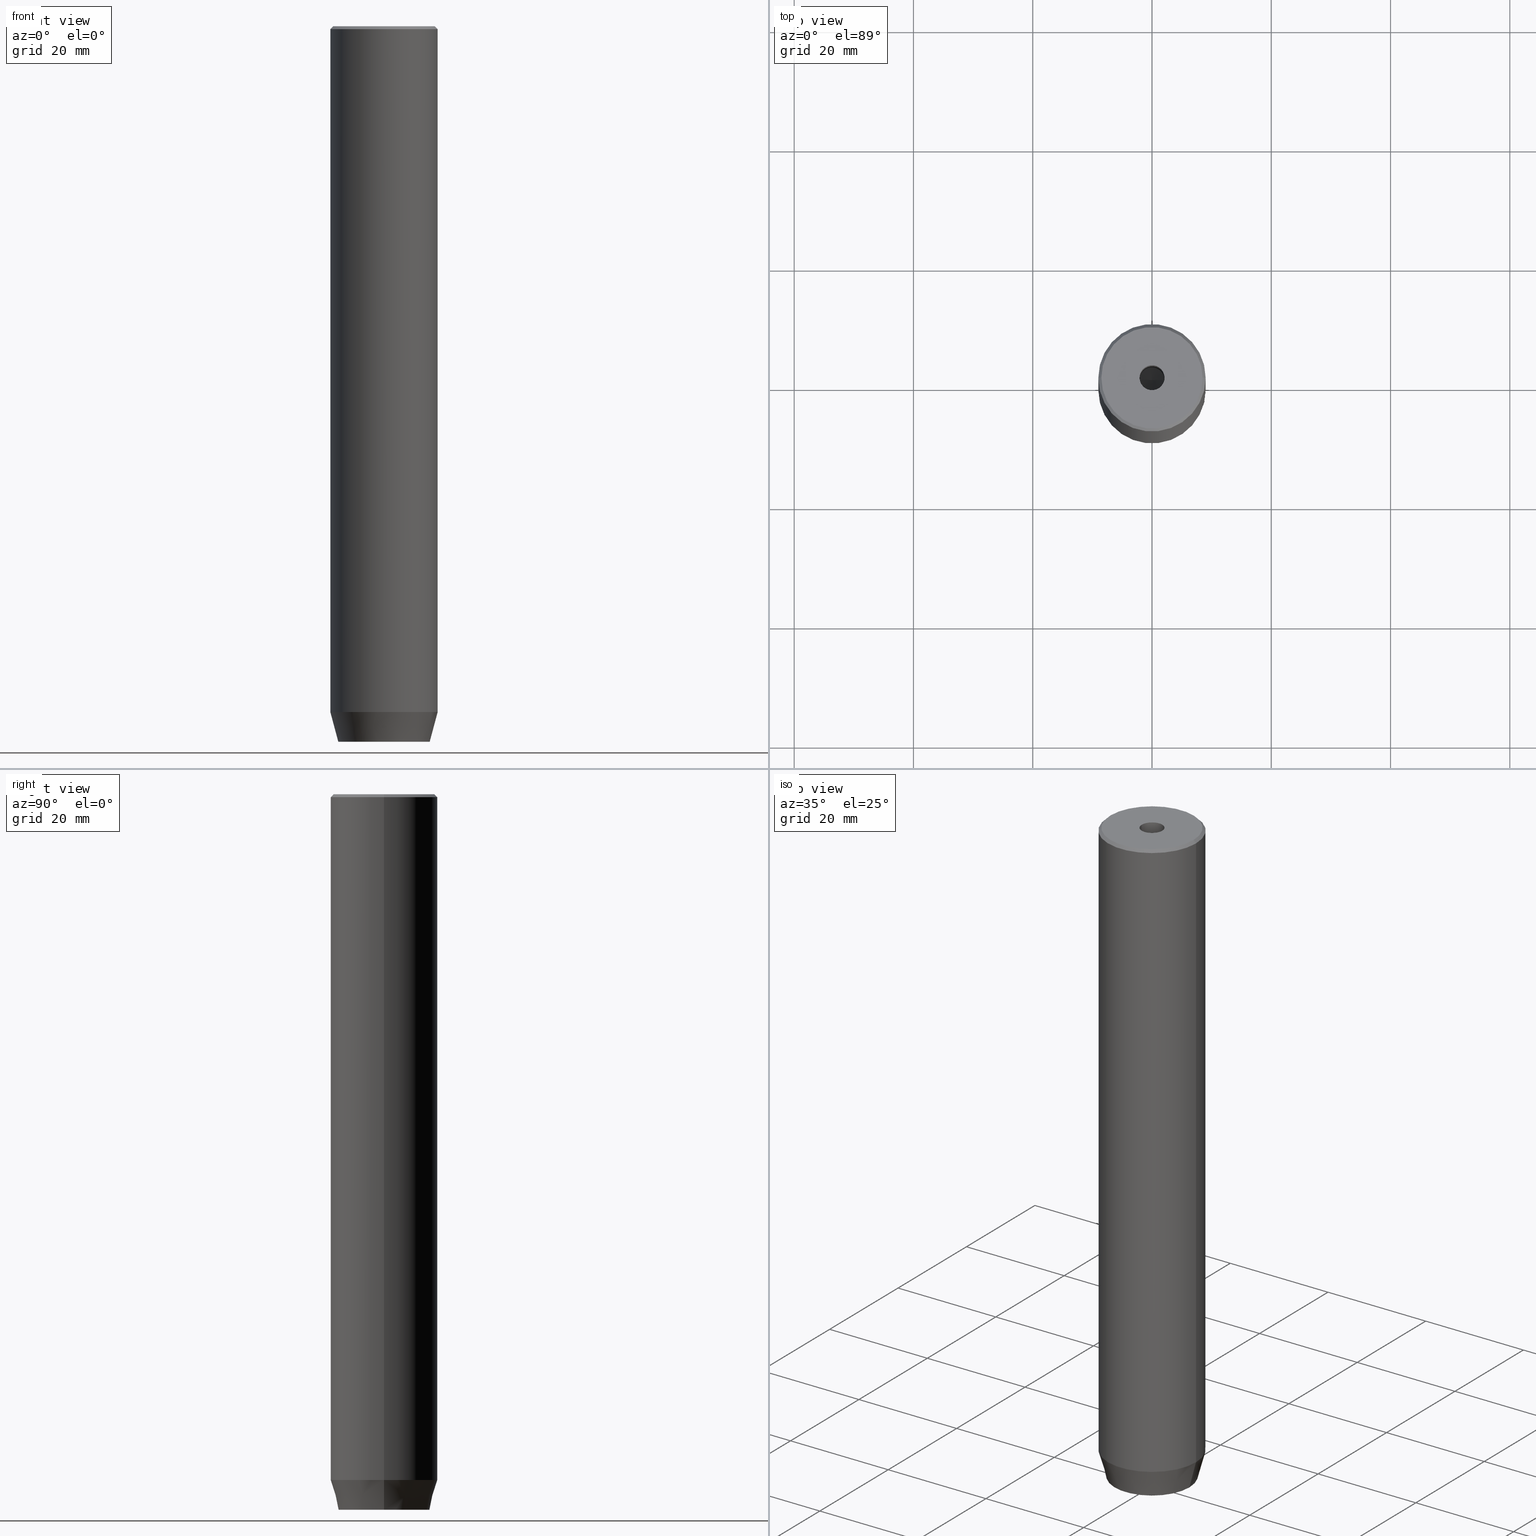
[diagram: canonical four-view strip — front | top / right | iso, engineering-drawing reading convention]
A machine part, canonical four-view strip (front | top / right | iso — engineering-drawing reading convention). The complete STEP part file that produces these views, byte-faithful:
ISO-10303-21;
HEADER;
FILE_DESCRIPTION (( 'STEP AP203' ),
    '1' );
FILE_NAME ('5eee.STEP',
    '2024-01-02T20:36:40',
    ( '' ),
    ( '' ),
    'SwSTEP 2.0',
    'SolidWorks 2019',
    '' );
FILE_SCHEMA (( 'CONFIG_CONTROL_DESIGN' ));
ENDSEC;

DATA;
#1 = LINE ( 'NONE', #51, #312 ) ;
#2 = EDGE_CURVE ( 'NONE', #159, #143, #544, .T. ) ;
#3 = DIRECTION ( 'NONE',  ( -2.503857664561932376E-16, 1.000000000000000000, 0.000000000000000000 ) ) ;
#4 = DIRECTION ( 'NONE',  ( -0.000000000000000000, -0.000000000000000000, -1.000000000000000000 ) ) ;
#5 = AXIS2_PLACEMENT_3D ( 'NONE', #539, #154, #472 ) ;
#6 = CIRCLE ( 'NONE', #32, 9.000000000000000000 ) ;
#7 = DIRECTION ( 'NONE',  ( -0.000000000000000000, -0.000000000000000000, -1.000000000000000000 ) ) ;
#8 = DIRECTION ( 'NONE',  ( 0.000000000000000000, -1.000000000000000000, 0.000000000000000000 ) ) ;
#9 = CALENDAR_DATE ( 2024, 2, 1 ) ;
#10 = DIRECTION ( 'NONE',  ( 1.000000000000000000, 0.000000000000000000, 0.000000000000000000 ) ) ;
#11 = ADVANCED_FACE ( 'NONE', ( #277 ), #23, .T. ) ;
#12 = DATE_TIME_ROLE ( 'creation_date' ) ;
#13 = CARTESIAN_POINT ( 'NONE',  ( 9.000000000000000000, 0.000000000000000000, -0.4999999999999952260 ) ) ;
#14 = ORIENTED_EDGE ( 'NONE', *, *, #240, .F. ) ;
#15 = CARTESIAN_POINT ( 'NONE',  ( 3.000000000000000000, -1.732050807568876527, -117.2000000000000028 ) ) ;
#16 = ORIENTED_EDGE ( 'NONE', *, *, #28, .T. ) ;
#17 = APPROVAL_STATUS ( 'not_yet_approved' ) ;
#18 = DIRECTION ( 'NONE',  ( -0.000000000000000000, -0.000000000000000000, 1.000000000000000000 ) ) ;
#19 = ORIENTED_EDGE ( 'NONE', *, *, #535, .F. ) ;
#20 = EDGE_CURVE ( 'NONE', #493, #152, #571, .T. ) ;
#21 = LINE ( 'NONE', #558, #375 ) ;
#22 = ORIENTED_EDGE ( 'NONE', *, *, #278, .T. ) ;
#23 = CONICAL_SURFACE ( 'NONE', #222, 8.499999999999992895, 0.7853981633974587151 ) ;
#24 = LINE ( 'NONE', #204, #80 ) ;
#25 = ORIENTED_EDGE ( 'NONE', *, *, #108, .T. ) ;
#26 = DIRECTION ( 'NONE',  ( 2.503857664561933362E-16, -1.000000000000000000, 0.000000000000000000 ) ) ;
#27 = ORIENTED_EDGE ( 'NONE', *, *, #510, .T. ) ;
#28 = EDGE_CURVE ( 'NONE', #110, #526, #46, .T. ) ;
#29 = DIRECTION ( 'NONE',  ( -0.000000000000000000, -0.000000000000000000, 1.000000000000000000 ) ) ;
#30 = EDGE_LOOP ( 'NONE', ( #22, #331, #310, #220 ) ) ;
#31 = CARTESIAN_POINT ( 'NONE',  ( -2.168404344971008868E-16, -3.464101615137754830, -117.2000000000000028 ) ) ;
#32 = AXIS2_PLACEMENT_3D ( 'NONE', #525, #264, #395 ) ;
#33 = ORIENTED_EDGE ( 'NONE', *, *, #148, .F. ) ;
#34 = EDGE_CURVE ( 'NONE', #73, #526, #582, .T. ) ;
#35 = CARTESIAN_POINT ( 'NONE',  ( 0.000000000000000000, 0.000000000000000000, -114.9999999999999858 ) ) ;
#36 = EDGE_LOOP ( 'NONE', ( #19, #33, #531, #508 ) ) ;
#37 = CYLINDRICAL_SURFACE ( 'NONE', #483, 9.000000000000000000 ) ;
#38 = ORIENTED_EDGE ( 'NONE', *, *, #323, .T. ) ;
#39 = DIRECTION ( 'NONE',  ( 0.5000000000000001110, -0.8660254037844385966, 0.000000000000000000 ) ) ;
#40 = AXIS2_PLACEMENT_3D ( 'NONE', #140, #500, #90 ) ;
#41 = DIRECTION ( 'NONE',  ( -0.000000000000000000, -0.000000000000000000, 1.000000000000000000 ) ) ;
#42 = AXIS2_PLACEMENT_3D ( 'NONE', #378, #335, #101 ) ;
#43 = DIRECTION ( 'NONE',  ( -0.000000000000000000, -0.000000000000000000, 1.000000000000000000 ) ) ;
#44 = CARTESIAN_POINT ( 'NONE',  ( -3.000000000000000888, 1.732050807568876527, -120.0000000000000000 ) ) ;
#45 = EDGE_CURVE ( 'NONE', #270, #75, #459, .T. ) ;
#46 = LINE ( 'NONE', #453, #182 ) ;
#47 = DIRECTION ( 'NONE',  ( 1.000000000000000000, 0.000000000000000000, 0.000000000000000000 ) ) ;
#48 = CARTESIAN_POINT ( 'NONE',  ( -1.084202172485504434E-16, 3.464101615137754830, -117.2000000000000028 ) ) ;
#49 = CONICAL_SURFACE ( 'NONE', #70, 9.000000000000000000, 0.2617993877991502405 ) ;
#50 = EDGE_CURVE ( 'NONE', #512, #523, #325, .T. ) ;
#51 = CARTESIAN_POINT ( 'NONE',  ( 3.000000000000000000, 1.732050807568876527, -117.2000000000000028 ) ) ;
#52 = APPROVAL_ROLE ( '' ) ;
#53 = DIRECTION ( 'NONE',  ( 0.000000000000000000, -1.000000000000000000, 0.000000000000000000 ) ) ;
#54 = APPROVAL ( #187, 'NEUR�EN�' ) ;
#55 = ORIENTED_EDGE ( 'NONE', *, *, #34, .T. ) ;
#56 = PERSON_AND_ORGANIZATION ( #115, #587 ) ;
#57 = FACE_OUTER_BOUND ( 'NONE', #393, .T. ) ;
#58 = ORIENTED_EDGE ( 'NONE', *, *, #88, .F. ) ;
#59 = VECTOR ( 'NONE', #360, 999.9999999999998863 ) ;
#60 = APPROVAL_STATUS ( 'not_yet_approved' ) ;
#61 = CARTESIAN_POINT ( 'NONE',  ( 3.000000000000000000, 1.732050807568876527, -120.0000000000000000 ) ) ;
#62 = EDGE_CURVE ( 'NONE', #526, #162, #135, .T. ) ;
#63 = AXIS2_PLACEMENT_3D ( 'NONE', #543, #39, #134 ) ;
#64 = APPROVAL_PERSON_ORGANIZATION ( #284, #72, #52 ) ;
#65 = APPROVAL_ROLE ( '' ) ;
#66 = CARTESIAN_POINT ( 'NONE',  ( 0.000000000000000000, 0.000000000000000000, -1.990051048614449116E-16 ) ) ;
#67 = CARTESIAN_POINT ( 'NONE',  ( 0.000000000000000000, 0.000000000000000000, -117.2000000000000028 ) ) ;
#68 = ORIENTED_EDGE ( 'NONE', *, *, #431, .F. ) ;
#69 = AXIS2_PLACEMENT_3D ( 'NONE', #146, #376, #338 ) ;
#70 = AXIS2_PLACEMENT_3D ( 'NONE', #35, #29, #303 ) ;
#71 = DIRECTION ( 'NONE',  ( -2.503857664561932376E-16, 1.000000000000000000, 0.000000000000000000 ) ) ;
#72 = APPROVAL ( #17, 'NEUR�EN�' ) ;
#73 = VERTEX_POINT ( 'NONE', #44 ) ;
#74 = LINE ( 'NONE', #386, #410 ) ;
#75 = VERTEX_POINT ( 'NONE', #92 ) ;
#76 = CARTESIAN_POINT ( 'NONE',  ( 0.000000000000000000, 0.000000000000000000, 0.000000000000000000 ) ) ;
#77 = EDGE_LOOP ( 'NONE', ( #533, #349, #473, #14 ) ) ;
#78 = MANIFOLD_SOLID_BREP ( 'Vrt�k z�vitn�ku pro M5 z�vit1', #479 ) ;
#79 = DIRECTION ( 'NONE',  ( -1.000000000000000000, -2.503857664561933362E-16, 0.000000000000000000 ) ) ;
#80 = VECTOR ( 'NONE', #434, 1000.000000000000000 ) ;
#81 = ORIENTED_EDGE ( 'NONE', *, *, #442, .T. ) ;
#82 = CC_DESIGN_PERSON_AND_ORGANIZATION_ASSIGNMENT ( #56, #460, ( #227 ) ) ;
#83 = CARTESIAN_POINT ( 'NONE',  ( -2.099999999999997424, 2.571758278209438506E-16, 0.000000000000000000 ) ) ;
#84 = ORIENTED_EDGE ( 'NONE', *, *, #404, .T. ) ;
#85 = CARTESIAN_POINT ( 'NONE',  ( 0.000000000000000000, 0.000000000000000000, -20.00000000000000000 ) ) ;
#86 =( LENGTH_UNIT ( ) NAMED_UNIT ( * ) SI_UNIT ( .MILLI., .METRE. ) );
#87 = CARTESIAN_POINT ( 'NONE',  ( 0.000000000000000000, 0.000000000000000000, -120.0000000000000000 ) ) ;
#88 = EDGE_CURVE ( 'NONE', #75, #484, #505, .T. ) ;
#89 =( NAMED_UNIT ( * ) PLANE_ANGLE_UNIT ( ) SI_UNIT ( $, .RADIAN. ) );
#90 = DIRECTION ( 'NONE',  ( 1.000000000000000000, 0.000000000000000000, 0.000000000000000000 ) ) ;
#91 = CARTESIAN_POINT ( 'NONE',  ( -1.499999999999999556, 2.598076211353316012, -117.2000000000000028 ) ) ;
#92 = CARTESIAN_POINT ( 'NONE',  ( -7.660254037844380193, 1.020146339021394272E-15, -120.0000000000000000 ) ) ;
#93 = EDGE_CURVE ( 'NONE', #259, #73, #127, .T. ) ;
#94 = DIRECTION ( 'NONE',  ( -0.2588190451025214611, 3.169619151431774186E-17, 0.9659258262890679791 ) ) ;
#95 = DIRECTION ( 'NONE',  ( 0.000000000000000000, 0.000000000000000000, 1.000000000000000000 ) ) ;
#96 = DIRECTION ( 'NONE',  ( 1.000000000000000000, 0.000000000000000000, 0.000000000000000000 ) ) ;
#97 = ORIENTED_EDGE ( 'NONE', *, *, #580, .T. ) ;
#98 = APPROVAL_DATE_TIME ( #509, #54 ) ;
#99 = CARTESIAN_POINT ( 'NONE',  ( 9.000000000000000000, 0.000000000000000000, -114.9999999999999858 ) ) ;
#100 = EDGE_LOOP ( 'NONE', ( #120, #336 ) ) ;
#101 = DIRECTION ( 'NONE',  ( 1.000000000000000000, 0.000000000000000000, 0.000000000000000000 ) ) ;
#102 = EDGE_CURVE ( 'NONE', #446, #162, #1, .T. ) ;
#103 = PERSON_AND_ORGANIZATION_ROLE ( 'design_supplier' ) ;
#104 = CARTESIAN_POINT ( 'NONE',  ( 7.660254037844380193, 0.000000000000000000, -120.0000000000000000 ) ) ;
#105 = VERTEX_POINT ( 'NONE', #280 ) ;
#106 = LINE ( 'NONE', #424, #329 ) ;
#107 = ORIENTED_EDGE ( 'NONE', *, *, #519, .T. ) ;
#108 = EDGE_CURVE ( 'NONE', #446, #288, #224, .T. ) ;
#109 = DIRECTION ( 'NONE',  ( 1.000000000000000000, 0.000000000000000000, 0.000000000000000000 ) ) ;
#110 = VERTEX_POINT ( 'NONE', #48 ) ;
#111 = AXIS2_PLACEMENT_3D ( 'NONE', #416, #18, #10 ) ;
#112 = VECTOR ( 'NONE', #122, 1000.000000000000000 ) ;
#113 = LINE ( 'NONE', #161, #491 ) ;
#114 = EDGE_LOOP ( 'NONE', ( #343, #579, #97, #367 ) ) ;
#115 = PERSON ( 'NEUR�EN�', 'NEUR�EN�', 'NEUR�EN�', ('NEUR�EN�'), ('NEUR�EN�'), ('NEUR�EN�') ) ;
#116 = LOCAL_TIME ( 21, 36, 40.00000000000000000, #423 ) ;
#117 = DIRECTION ( 'NONE',  ( -0.4999999999999999445, 0.8660254037844387076, 0.000000000000000000 ) ) ;
#118 = ORIENTED_EDGE ( 'NONE', *, *, #202, .F. ) ;
#119 = DIRECTION ( 'NONE',  ( -1.000000000000000000, 0.000000000000000000, -0.000000000000000000 ) ) ;
#120 = ORIENTED_EDGE ( 'NONE', *, *, #285, .F. ) ;
#121 = EDGE_CURVE ( 'NONE', #143, #296, #448, .T. ) ;
#122 = DIRECTION ( 'NONE',  ( -0.000000000000000000, -0.000000000000000000, 1.000000000000000000 ) ) ;
#123 = VECTOR ( 'NONE', #345, 1000.000000000000000 ) ;
#124 = EDGE_LOOP ( 'NONE', ( #565, #226 ) ) ;
#125 = DIRECTION ( 'NONE',  ( -1.000000000000000000, 0.000000000000000000, 0.000000000000000000 ) ) ;
#126 = AXIS2_PLACEMENT_3D ( 'NONE', #581, #536, #125 ) ;
#127 = LINE ( 'NONE', #461, #350 ) ;
#128 = ADVANCED_FACE ( 'NONE', ( #272 ), #233, .F. ) ;
#129 = CARTESIAN_POINT ( 'NONE',  ( 0.000000000000000000, 0.000000000000000000, 0.000000000000000000 ) ) ;
#130 = ORIENTED_EDGE ( 'NONE', *, *, #50, .T. ) ;
#131 = CARTESIAN_POINT ( 'NONE',  ( 3.000000000000000000, -1.732050807568876527, -117.2000000000000028 ) ) ;
#132 = ORIENTED_EDGE ( 'NONE', *, *, #28, .F. ) ;
#133 = VECTOR ( 'NONE', #53, 1000.000000000000000 ) ;
#134 = DIRECTION ( 'NONE',  ( 0.8660254037844385966, 0.5000000000000001110, 0.000000000000000000 ) ) ;
#135 = LINE ( 'NONE', #502, #394 ) ;
#136 = VECTOR ( 'NONE', #538, 1000.000000000000000 ) ;
#137 = LOCAL_TIME ( 21, 36, 40.00000000000000000, #380 ) ;
#138 = ADVANCED_FACE ( 'NONE', ( #318 ), #385, .F. ) ;
#139 = DIRECTION ( 'NONE',  ( 1.000000000000000000, 0.000000000000000000, 0.000000000000000000 ) ) ;
#140 = CARTESIAN_POINT ( 'NONE',  ( 0.000000000000000000, 0.000000000000000000, 0.000000000000000000 ) ) ;
#141 = DATE_AND_TIME ( #417, #260 ) ;
#142 = DIRECTION ( 'NONE',  ( -0.000000000000000000, -0.000000000000000000, 1.000000000000000000 ) ) ;
#143 = VERTEX_POINT ( 'NONE', #176 ) ;
#144 = CONICAL_SURFACE ( 'NONE', #111, 9.000000000000000000, 0.2617993877991502405 ) ;
#145 = PERSON_AND_ORGANIZATION_ROLE ( 'design_owner' ) ;
#146 = CARTESIAN_POINT ( 'NONE',  ( 1.500000000000000222, 2.598076211353315568, -117.2000000000000028 ) ) ;
#147 = CC_DESIGN_SECURITY_CLASSIFICATION ( #454, ( #227 ) ) ;
#148 = EDGE_CURVE ( 'NONE', #143, #567, #171, .T. ) ;
#149 = CARTESIAN_POINT ( 'NONE',  ( 0.000000000000000000, 0.000000000000000000, -114.9999999999999858 ) ) ;
#150 = ORIENTED_EDGE ( 'NONE', *, *, #412, .F. ) ;
#151 = DIRECTION ( 'NONE',  ( -0.000000000000000000, -0.000000000000000000, 1.000000000000000000 ) ) ;
#152 = VERTEX_POINT ( 'NONE', #236 ) ;
#153 = CIRCLE ( 'NONE', #234, 8.499999999999992895 ) ;
#154 = DIRECTION ( 'NONE',  ( -0.000000000000000000, -0.000000000000000000, 1.000000000000000000 ) ) ;
#155 = EDGE_LOOP ( 'NONE', ( #559, #399, #249, #150 ) ) ;
#156 = EDGE_CURVE ( 'NONE', #105, #173, #339, .T. ) ;
#157 = VECTOR ( 'NONE', #3, 1000.000000000000000 ) ;
#158 = CARTESIAN_POINT ( 'NONE',  ( -2.099999999999996092, 2.571758278209436534E-16, -20.00000000000000000 ) ) ;
#159 = VERTEX_POINT ( 'NONE', #564 ) ;
#160 = CC_DESIGN_PERSON_AND_ORGANIZATION_ASSIGNMENT ( #337, #103, ( #227 ) ) ;
#161 = CARTESIAN_POINT ( 'NONE',  ( -3.000000000000000444, -7.511572993685800087E-16, -120.0000000000000000 ) ) ;
#162 = VERTEX_POINT ( 'NONE', #61 ) ;
#163 = AXIS2_PLACEMENT_3D ( 'NONE', #210, #208, #306 ) ;
#164 = LINE ( 'NONE', #430, #245 ) ;
#165 = ORIENTED_EDGE ( 'NONE', *, *, #297, .T. ) ;
#166 = CARTESIAN_POINT ( 'NONE',  ( -3.000000000000000444, -7.511572993685800087E-16, -117.2000000000000028 ) ) ;
#167 = EDGE_CURVE ( 'NONE', #493, #173, #106, .T. ) ;
#168 = ORIENTED_EDGE ( 'NONE', *, *, #148, .T. ) ;
#169 = PLANE ( 'NONE',  #433 ) ;
#170 = ORIENTED_EDGE ( 'NONE', *, *, #311, .T. ) ;
#171 = CIRCLE ( 'NONE', #5, 2.099999999999996092 ) ;
#172 = CYLINDRICAL_SURFACE ( 'NONE', #576, 9.000000000000000000 ) ;
#173 = VERTEX_POINT ( 'NONE', #13 ) ;
#174 = PRODUCT_DEFINITION ( 'NEZN�M�', '', #227, #370 ) ;
#175 = FACE_OUTER_BOUND ( 'NONE', #391, .T. ) ;
#176 = CARTESIAN_POINT ( 'NONE',  ( 2.099999999999996092, 0.000000000000000000, -20.00000000000000000 ) ) ;
#177 = LOCAL_TIME ( 21, 36, 40.00000000000000000, #560 ) ;
#178 =( NAMED_UNIT ( * ) SI_UNIT ( $, .STERADIAN. ) SOLID_ANGLE_UNIT ( ) );
#179 = DIRECTION ( 'NONE',  ( -0.000000000000000000, -0.000000000000000000, 1.000000000000000000 ) ) ;
#180 = APPLICATION_CONTEXT ( 'configuration controlled 3d designs of mechanical parts and assemblies' ) ;
#181 = CARTESIAN_POINT ( 'NONE',  ( 0.000000000000000000, 0.000000000000000000, 0.000000000000000000 ) ) ;
#182 = VECTOR ( 'NONE', #4, 1000.000000000000000 ) ;
#183 = DIRECTION ( 'NONE',  ( 0.8571673007021111124, 0.000000000000000000, 0.5150380749100562650 ) ) ;
#184 = AXIS2_PLACEMENT_3D ( 'NONE', #67, #530, #119 ) ;
#185 = CARTESIAN_POINT ( 'NONE',  ( -2.168404344971008868E-16, -3.464101615137754830, -120.0000000000000000 ) ) ;
#186 = CARTESIAN_POINT ( 'NONE',  ( -1.499999999999999556, 2.598076211353316012, -120.0000000000000000 ) ) ;
#187 = APPROVAL_STATUS ( 'not_yet_approved' ) ;
#188 = FACE_OUTER_BOUND ( 'NONE', #241, .T. ) ;
#189 = PERSON_AND_ORGANIZATION ( #115, #587 ) ;
#190 = DIRECTION ( 'NONE',  ( -0.000000000000000000, -0.000000000000000000, 1.000000000000000000 ) ) ;
#191 = ORIENTED_EDGE ( 'NONE', *, *, #193, .T. ) ;
#192 = AXIS2_PLACEMENT_3D ( 'NONE', #76, #443, #348 ) ;
#193 = EDGE_CURVE ( 'NONE', #469, #523, #21, .T. ) ;
#194 = CALENDAR_DATE ( 2024, 2, 1 ) ;
#195 = CARTESIAN_POINT ( 'NONE',  ( 2.099999999999998757, 0.000000000000000000, -1.990051048614449116E-16 ) ) ;
#196 = ORIENTED_EDGE ( 'NONE', *, *, #442, .F. ) ;
#197 = PRODUCT_RELATED_PRODUCT_CATEGORY ( 'detail', '', ( #573 ) ) ;
#198 = FACE_OUTER_BOUND ( 'NONE', #215, .T. ) ;
#199 = VERTEX_POINT ( 'NONE', #517 ) ;
#200 = PERSON_AND_ORGANIZATION ( #115, #587 ) ;
#201 = FACE_OUTER_BOUND ( 'NONE', #124, .T. ) ;
#202 = EDGE_CURVE ( 'NONE', #110, #446, #476, .T. ) ;
#203 = ORIENTED_EDGE ( 'NONE', *, *, #381, .F. ) ;
#204 = CARTESIAN_POINT ( 'NONE',  ( -8.499999999999992895, 0.000000000000000000, 0.000000000000000000 ) ) ;
#205 = CC_DESIGN_PERSON_AND_ORGANIZATION_ASSIGNMENT ( #200, #420, ( #454 ) ) ;
#206 = VERTEX_POINT ( 'NONE', #298 ) ;
#207 = CC_DESIGN_APPROVAL ( #72, ( #174 ) ) ;
#208 = DIRECTION ( 'NONE',  ( -0.000000000000000000, -0.000000000000000000, 1.000000000000000000 ) ) ;
#209 = ORIENTED_EDGE ( 'NONE', *, *, #240, .T. ) ;
#210 = CARTESIAN_POINT ( 'NONE',  ( 0.000000000000000000, 0.000000000000000000, -120.0000000000000000 ) ) ;
#211 = ORIENTED_EDGE ( 'NONE', *, *, #93, .T. ) ;
#212 = ADVANCED_FACE ( 'NONE', ( #520 ), #144, .T. ) ;
#213 = VECTOR ( 'NONE', #438, 1000.000000000000000 ) ;
#214 = FACE_OUTER_BOUND ( 'NONE', #114, .T. ) ;
#215 = EDGE_LOOP ( 'NONE', ( #521, #352, #118, #16 ) ) ;
#216 = AXIS2_PLACEMENT_3D ( 'NONE', #129, #499, #139 ) ;
#217 = LINE ( 'NONE', #356, #112 ) ;
#218 = EDGE_LOOP ( 'NONE', ( #81, #308 ) ) ;
#219 = LINE ( 'NONE', #83, #316 ) ;
#220 = ORIENTED_EDGE ( 'NONE', *, *, #102, .T. ) ;
#221 = ADVANCED_FACE ( 'NONE', ( #198 ), #384, .F. ) ;
#222 = AXIS2_PLACEMENT_3D ( 'NONE', #497, #229, #455 ) ;
#223 = CARTESIAN_POINT ( 'NONE',  ( -9.000000000000000000, 1.102182119232617714E-15, -114.9999999999999858 ) ) ;
#224 = LINE ( 'NONE', #403, #358 ) ;
#225 = PLANE ( 'NONE',  #216 ) ;
#226 = ORIENTED_EDGE ( 'NONE', *, *, #389, .F. ) ;
#227 = PRODUCT_DEFINITION_FORMATION_WITH_SPECIFIED_SOURCE ( 'LIBOVOLN�', '', #573, .NOT_KNOWN. ) ;
#228 = LINE ( 'NONE', #91, #313 ) ;
#229 = DIRECTION ( 'NONE',  ( 0.000000000000000000, 0.000000000000000000, -1.000000000000000000 ) ) ;
#230 = ADVANCED_FACE ( 'NONE', ( #239, #201 ), #333, .T. ) ;
#231 = CARTESIAN_POINT ( 'NONE',  ( -3.000000000000000444, -7.511572993685800087E-16, -117.2000000000000028 ) ) ;
#232 = AXIS2_PLACEMENT_3D ( 'NONE', #87, #327, #365 ) ;
#233 = PLANE ( 'NONE',  #470 ) ;
#234 = AXIS2_PLACEMENT_3D ( 'NONE', #261, #522, #109 ) ;
#235 = PERSON_AND_ORGANIZATION_ROLE ( 'creator' ) ;
#236 = CARTESIAN_POINT ( 'NONE',  ( -8.499999999999992895, 0.000000000000000000, 0.000000000000000000 ) ) ;
#237 = VECTOR ( 'NONE', #324, 1000.000000000000000 ) ;
#238 = APPROVAL_DATE_TIME ( #250, #72 ) ;
#239 = FACE_BOUND ( 'NONE', #408, .T. ) ;
#240 = EDGE_CURVE ( 'NONE', #270, #465, #561, .T. ) ;
#241 = EDGE_LOOP ( 'NONE', ( #130, #439, #477, #170 ) ) ;
#242 = DATE_TIME_ROLE ( 'classification_date' ) ;
#243 = DIRECTION ( 'NONE',  ( -0.000000000000000000, -0.000000000000000000, -1.000000000000000000 ) ) ;
#244 = EDGE_LOOP ( 'NONE', ( #396, #262, #255, #27 ) ) ;
#245 = VECTOR ( 'NONE', #485, 1000.000000000000000 ) ;
#246 = CC_DESIGN_DATE_AND_TIME_ASSIGNMENT ( #504, #242, ( #454 ) ) ;
#247 = COORDINATED_UNIVERSAL_TIME_OFFSET ( 1, 0, .AHEAD. ) ;
#248 = DIRECTION ( 'NONE',  ( 0.8660254037844385966, -0.5000000000000001110, 0.000000000000000000 ) ) ;
#249 = ORIENTED_EDGE ( 'NONE', *, *, #156, .F. ) ;
#250 = DATE_AND_TIME ( #194, #437 ) ;
#251 = ADVANCED_FACE ( 'NONE', ( #188 ), #373, .F. ) ;
#252 = DIRECTION ( 'NONE',  ( 0.000000000000000000, 0.000000000000000000, -1.000000000000000000 ) ) ;
#253 = EDGE_LOOP ( 'NONE', ( #315, #196, #334, #577 ) ) ;
#254 = DIRECTION ( 'NONE',  ( -0.000000000000000000, -0.000000000000000000, 1.000000000000000000 ) ) ;
#255 = ORIENTED_EDGE ( 'NONE', *, *, #404, .F. ) ;
#256 = AXIS2_PLACEMENT_3D ( 'NONE', #85, #41, #586 ) ;
#257 = AXIS2_PLACEMENT_3D ( 'NONE', #149, #142, #330 ) ;
#258 = FACE_OUTER_BOUND ( 'NONE', #377, .T. ) ;
#259 = VERTEX_POINT ( 'NONE', #467 ) ;
#260 = LOCAL_TIME ( 21, 36, 40.00000000000000000, #281 ) ;
#261 = CARTESIAN_POINT ( 'NONE',  ( 0.000000000000000000, 0.000000000000000000, 0.000000000000000000 ) ) ;
#262 = ORIENTED_EDGE ( 'NONE', *, *, #311, .F. ) ;
#263 = EDGE_CURVE ( 'NONE', #465, #484, #506, .T. ) ;
#264 = DIRECTION ( 'NONE',  ( 0.000000000000000000, 0.000000000000000000, -1.000000000000000000 ) ) ;
#265 = ORIENTED_EDGE ( 'NONE', *, *, #156, .T. ) ;
#266 = FACE_OUTER_BOUND ( 'NONE', #301, .T. ) ;
#267 = ORIENTED_EDGE ( 'NONE', *, *, #2, .T. ) ;
#268 = ADVANCED_FACE ( 'NONE', ( #57 ), #534, .F. ) ;
#269 = LINE ( 'NONE', #231, #157 ) ;
#270 = VERTEX_POINT ( 'NONE', #104 ) ;
#271 = DIRECTION ( 'NONE',  ( -0.000000000000000000, -0.000000000000000000, 1.000000000000000000 ) ) ;
#272 = FACE_OUTER_BOUND ( 'NONE', #30, .T. ) ;
#273 = AXIS2_PLACEMENT_3D ( 'NONE', #464, #290, #295 ) ;
#274 = CARTESIAN_POINT ( 'NONE',  ( -3.000000000000000000, -1.732050807568877859, -120.0000000000000000 ) ) ;
#275 = ORIENTED_EDGE ( 'NONE', *, *, #422, .F. ) ;
#276 = DIRECTION ( 'NONE',  ( 1.000000000000000000, 0.000000000000000000, 0.000000000000000000 ) ) ;
#277 = FACE_OUTER_BOUND ( 'NONE', #155, .T. ) ;
#278 = EDGE_CURVE ( 'NONE', #162, #341, #421, .T. ) ;
#279 = CARTESIAN_POINT ( 'NONE',  ( 9.000000000000000000, 0.000000000000000000, -114.9999999999999858 ) ) ;
#280 = CARTESIAN_POINT ( 'NONE',  ( -9.000000000000000000, 1.102182119232617714E-15, -0.4999999999999952260 ) ) ;
#281 = COORDINATED_UNIVERSAL_TIME_OFFSET ( 1, 0, .AHEAD. ) ;
#282 = DIRECTION ( 'NONE',  ( 0.8660254037844385966, -0.5000000000000001110, 0.000000000000000000 ) ) ;
#283 = AXIS2_PLACEMENT_3D ( 'NONE', #488, #578, #575 ) ;
#284 = PERSON_AND_ORGANIZATION ( #115, #587 ) ;
#285 = EDGE_CURVE ( 'NONE', #296, #199, #471, .T. ) ;
#286 = DIRECTION ( 'NONE',  ( 0.000000000000000000, 0.000000000000000000, -1.000000000000000000 ) ) ;
#287 =( GEOMETRIC_REPRESENTATION_CONTEXT ( 3 ) GLOBAL_UNCERTAINTY_ASSIGNED_CONTEXT ( ( #289 ) ) GLOBAL_UNIT_ASSIGNED_CONTEXT ( ( #86, #89, #178 ) ) REPRESENTATION_CONTEXT ( 'NONE', 'WORKASPACE' ) );
#288 = VERTEX_POINT ( 'NONE', #15 ) ;
#289 = UNCERTAINTY_MEASURE_WITH_UNIT (LENGTH_MEASURE( 1.000000000000000082E-05 ), #86, 'distance_accuracy_value', 'NONE');
#290 = DIRECTION ( 'NONE',  ( -0.5000000000000001110, -0.8660254037844385966, 0.000000000000000000 ) ) ;
#291 = PERSON_AND_ORGANIZATION ( #115, #587 ) ;
#292 = FACE_OUTER_BOUND ( 'NONE', #346, .T. ) ;
#293 = ORIENTED_EDGE ( 'NONE', *, *, #456, .T. ) ;
#294 = AXIS2_PLACEMENT_3D ( 'NONE', #568, #117, #440 ) ;
#295 = DIRECTION ( 'NONE',  ( 0.8660254037844385966, -0.5000000000000001110, 0.000000000000000000 ) ) ;
#296 = VERTEX_POINT ( 'NONE', #195 ) ;
#297 = EDGE_CURVE ( 'NONE', #567, #143, #481, .T. ) ;
#298 = CARTESIAN_POINT ( 'NONE',  ( -2.168404344971008868E-16, -3.464101615137754830, -117.2000000000000028 ) ) ;
#299 = ORIENTED_EDGE ( 'NONE', *, *, #93, .F. ) ;
#300 = CARTESIAN_POINT ( 'NONE',  ( 3.000000000000000000, 1.732050807568876527, -117.2000000000000028 ) ) ;
#301 = EDGE_LOOP ( 'NONE', ( #38, #299, #480, #191 ) ) ;
#302 = AXIS2_PLACEMENT_3D ( 'NONE', #66, #190, #514 ) ;
#303 = DIRECTION ( 'NONE',  ( 1.000000000000000000, 0.000000000000000000, 0.000000000000000000 ) ) ;
#304 = ADVANCED_FACE ( 'NONE', ( #292 ), #482, .F. ) ;
#305 = ORIENTED_EDGE ( 'NONE', *, *, #323, .F. ) ;
#306 = DIRECTION ( 'NONE',  ( 1.000000000000000000, 0.000000000000000000, 0.000000000000000000 ) ) ;
#307 = APPROVAL ( #60, 'NEUR�EN�' ) ;
#308 = ORIENTED_EDGE ( 'NONE', *, *, #20, .T. ) ;
#309 = LINE ( 'NONE', #31, #213 ) ;
#310 = ORIENTED_EDGE ( 'NONE', *, *, #108, .F. ) ;
#311 = EDGE_CURVE ( 'NONE', #206, #512, #309, .T. ) ;
#312 = VECTOR ( 'NONE', #413, 1000.000000000000000 ) ;
#313 = VECTOR ( 'NONE', #366, 999.9999999999998863 ) ;
#314 = CARTESIAN_POINT ( 'NONE',  ( 0.000000000000000000, 0.000000000000000000, -114.9999999999999858 ) ) ;
#315 = ORIENTED_EDGE ( 'NONE', *, *, #167, .F. ) ;
#316 = VECTOR ( 'NONE', #319, 1000.000000000000000 ) ;
#317 = CARTESIAN_POINT ( 'NONE',  ( -2.099999999999996092, 2.571758278209436534E-16, -20.00000000000000000 ) ) ;
#318 = FACE_OUTER_BOUND ( 'NONE', #486, .T. ) ;
#319 = DIRECTION ( 'NONE',  ( -0.000000000000000000, -0.000000000000000000, 1.000000000000000000 ) ) ;
#320 = EDGE_LOOP ( 'NONE', ( #293, #357, #25, #84, #107, #569 ) ) ;
#321 = VECTOR ( 'NONE', #183, 1000.000000000000000 ) ;
#322 = CARTESIAN_POINT ( 'NONE',  ( 2.099999999999996092, 0.000000000000000000, -20.00000000000000000 ) ) ;
#323 = EDGE_CURVE ( 'NONE', #523, #73, #113, .T. ) ;
#324 = DIRECTION ( 'NONE',  ( -0.8660254037844385966, -0.5000000000000001110, 0.000000000000000000 ) ) ;
#325 = LINE ( 'NONE', #541, #432 ) ;
#326 = CALENDAR_DATE ( 2024, 2, 1 ) ;
#327 = DIRECTION ( 'NONE',  ( -0.000000000000000000, -0.000000000000000000, 1.000000000000000000 ) ) ;
#328 = ADVANCED_FACE ( 'NONE', ( #214 ), #390, .F. ) ;
#329 = VECTOR ( 'NONE', #418, 1000.000000000000000 ) ;
#330 = DIRECTION ( 'NONE',  ( 1.000000000000000000, 0.000000000000000000, 0.000000000000000000 ) ) ;
#331 = ORIENTED_EDGE ( 'NONE', *, *, #510, .F. ) ;
#332 = APPLICATION_PROTOCOL_DEFINITION ( 'international standard', 'config_control_design', 1994, #180 ) ;
#333 = PLANE ( 'NONE',  #450 ) ;
#334 = ORIENTED_EDGE ( 'NONE', *, *, #412, .T. ) ;
#335 = DIRECTION ( 'NONE',  ( -0.000000000000000000, -0.000000000000000000, 1.000000000000000000 ) ) ;
#336 = ORIENTED_EDGE ( 'NONE', *, *, #580, .F. ) ;
#337 = PERSON_AND_ORGANIZATION ( #115, #587 ) ;
#338 = DIRECTION ( 'NONE',  ( -0.8660254037844385966, 0.5000000000000001110, 0.000000000000000000 ) ) ;
#339 = CIRCLE ( 'NONE', #542, 9.000000000000000000 ) ;
#340 = ADVANCED_FACE ( 'NONE', ( #266 ), #169, .F. ) ;
#341 = VERTEX_POINT ( 'NONE', #397 ) ;
#342 = CARTESIAN_POINT ( 'NONE',  ( 1.500000000000000222, 2.598076211353315568, -117.2000000000000028 ) ) ;
#343 = ORIENTED_EDGE ( 'NONE', *, *, #297, .F. ) ;
#344 = CC_DESIGN_APPROVAL ( #54, ( #454 ) ) ;
#345 = DIRECTION ( 'NONE',  ( -0.8571673007021111124, 1.049727191138617217E-16, 0.5150380749100562650 ) ) ;
#346 = EDGE_LOOP ( 'NONE', ( #55, #132, #425, #211 ) ) ;
#347 = ADVANCED_FACE ( 'NONE', ( #572 ), #532, .F. ) ;
#348 = DIRECTION ( 'NONE',  ( 1.000000000000000000, 0.000000000000000000, 0.000000000000000000 ) ) ;
#349 = ORIENTED_EDGE ( 'NONE', *, *, #88, .T. ) ;
#350 = VECTOR ( 'NONE', #406, 1000.000000000000000 ) ;
#351 = FACE_OUTER_BOUND ( 'NONE', #77, .T. ) ;
#352 = ORIENTED_EDGE ( 'NONE', *, *, #102, .F. ) ;
#353 = FACE_OUTER_BOUND ( 'NONE', #320, .T. ) ;
#354 = ORIENTED_EDGE ( 'NONE', *, *, #364, .T. ) ;
#355 = ADVANCED_FACE ( 'NONE', ( #351 ), #49, .T. ) ;
#356 = CARTESIAN_POINT ( 'NONE',  ( -9.000000000000000000, 1.102182119232617714E-15, 0.000000000000000000 ) ) ;
#357 = ORIENTED_EDGE ( 'NONE', *, *, #202, .T. ) ;
#358 = VECTOR ( 'NONE', #8, 1000.000000000000000 ) ;
#359 = PLANE ( 'NONE',  #63 ) ;
#360 = DIRECTION ( 'NONE',  ( 0.8660254037844387076, 0.4999999999999999445, 0.000000000000000000 ) ) ;
#361 = CARTESIAN_POINT ( 'NONE',  ( -1.500000000000000666, -2.598076211353316456, -117.2000000000000028 ) ) ;
#362 = DIRECTION ( 'NONE',  ( -0.8660254037844385966, 0.5000000000000001110, 0.000000000000000000 ) ) ;
#363 = ADVANCED_BREP_SHAPE_REPRESENTATION ( '5eee', ( #78, #436 ), #287 ) ;
#364 = EDGE_CURVE ( 'NONE', #173, #105, #6, .T. ) ;
#365 = DIRECTION ( 'NONE',  ( 1.000000000000000000, 0.000000000000000000, 0.000000000000000000 ) ) ;
#366 = DIRECTION ( 'NONE',  ( 0.8660254037844387076, 0.4999999999999999445, 0.000000000000000000 ) ) ;
#367 = ORIENTED_EDGE ( 'NONE', *, *, #121, .F. ) ;
#368 = AXIS2_PLACEMENT_3D ( 'NONE', #496, #540, #276 ) ;
#369 = LINE ( 'NONE', #361, #136 ) ;
#370 = DESIGN_CONTEXT ( 'detailed design', #546, 'design' ) ;
#371 = CARTESIAN_POINT ( 'NONE',  ( 3.000000000000000000, 0.000000000000000000, -117.2000000000000028 ) ) ;
#372 = ADVANCED_FACE ( 'NONE', ( #353 ), #478, .T. ) ;
#373 = PLANE ( 'NONE',  #273 ) ;
#374 = DIRECTION ( 'NONE',  ( 1.000000000000000000, 0.000000000000000000, 0.000000000000000000 ) ) ;
#375 = VECTOR ( 'NONE', #243, 1000.000000000000000 ) ;
#376 = DIRECTION ( 'NONE',  ( 0.5000000000000001110, 0.8660254037844385966, -0.000000000000000000 ) ) ;
#377 = EDGE_LOOP ( 'NONE', ( #458, #529, #265, #275 ) ) ;
#378 = CARTESIAN_POINT ( 'NONE',  ( 0.000000000000000000, 0.000000000000000000, -20.00000000000000000 ) ) ;
#379 = ORIENTED_EDGE ( 'NONE', *, *, #431, .T. ) ;
#380 = COORDINATED_UNIVERSAL_TIME_OFFSET ( 1, 0, .AHEAD. ) ;
#381 = EDGE_CURVE ( 'NONE', #484, #105, #217, .T. ) ;
#382 = DIRECTION ( 'NONE',  ( -1.000000000000000000, 0.000000000000000000, -0.000000000000000000 ) ) ;
#383 = APPROVAL_DATE_TIME ( #466, #307 ) ;
#384 = PLANE ( 'NONE',  #69 ) ;
#385 = CONICAL_SURFACE ( 'NONE', #256, 2.099999999999996092, 1.029744258676652091 ) ;
#386 = CARTESIAN_POINT ( 'NONE',  ( 9.000000000000000000, 0.000000000000000000, 0.000000000000000000 ) ) ;
#387 = EDGE_LOOP ( 'NONE', ( #58, #518, #209, #444 ) ) ;
#388 = CONICAL_SURFACE ( 'NONE', #126, 8.499999999999992895, 0.7853981633974587151 ) ;
#389 = EDGE_CURVE ( 'NONE', #75, #270, #451, .T. ) ;
#390 = CYLINDRICAL_SURFACE ( 'NONE', #283, 2.099999999999997424 ) ;
#391 = EDGE_LOOP ( 'NONE', ( #203, #555, #489, #354 ) ) ;
#392 = DIRECTION ( 'NONE',  ( 1.000000000000000000, 0.000000000000000000, 0.000000000000000000 ) ) ;
#393 = EDGE_LOOP ( 'NONE', ( #68, #267, #168 ) ) ;
#394 = VECTOR ( 'NONE', #282, 1000.000000000000000 ) ;
#395 = DIRECTION ( 'NONE',  ( 1.000000000000000000, 0.000000000000000000, 0.000000000000000000 ) ) ;
#396 = ORIENTED_EDGE ( 'NONE', *, *, #475, .T. ) ;
#397 = CARTESIAN_POINT ( 'NONE',  ( 3.000000000000000000, -1.732050807568876527, -120.0000000000000000 ) ) ;
#398 = EDGE_CURVE ( 'NONE', #484, #465, #498, .T. ) ;
#399 = ORIENTED_EDGE ( 'NONE', *, *, #167, .T. ) ;
#400 = CARTESIAN_POINT ( 'NONE',  ( 1.500000000000000222, -2.598076211353315568, -120.0000000000000000 ) ) ;
#401 = CARTESIAN_POINT ( 'NONE',  ( -9.000000000000000000, 1.102182119232617714E-15, -114.9999999999999858 ) ) ;
#402 = CARTESIAN_POINT ( 'NONE',  ( 8.499999999999992895, 1.071565949253933532E-15, 0.000000000000000000 ) ) ;
#403 = CARTESIAN_POINT ( 'NONE',  ( 3.000000000000000000, 0.000000000000000000, -117.2000000000000028 ) ) ;
#404 = EDGE_CURVE ( 'NONE', #288, #206, #164, .T. ) ;
#405 = APPROVAL_PERSON_ORGANIZATION ( #291, #54, #556 ) ;
#406 = DIRECTION ( 'NONE',  ( -0.000000000000000000, -0.000000000000000000, -1.000000000000000000 ) ) ;
#407 = DIRECTION ( 'NONE',  ( 1.000000000000000000, 0.000000000000000000, 0.000000000000000000 ) ) ;
#408 = EDGE_LOOP ( 'NONE', ( #574, #305, #419, #562, #429, #441 ) ) ;
#409 = VECTOR ( 'NONE', #248, 1000.000000000000000 ) ;
#410 = VECTOR ( 'NONE', #527, 1000.000000000000000 ) ;
#411 = LINE ( 'NONE', #131, #462 ) ;
#412 = EDGE_CURVE ( 'NONE', #152, #105, #24, .T. ) ;
#413 = DIRECTION ( 'NONE',  ( -0.000000000000000000, -0.000000000000000000, -1.000000000000000000 ) ) ;
#414 = SECURITY_CLASSIFICATION_LEVEL ( 'unclassified' ) ;
#415 = APPROVAL_PERSON_ORGANIZATION ( #189, #307, #65 ) ;
#416 = CARTESIAN_POINT ( 'NONE',  ( 0.000000000000000000, 0.000000000000000000, -114.9999999999999858 ) ) ;
#417 = CALENDAR_DATE ( 2024, 2, 1 ) ;
#418 = DIRECTION ( 'NONE',  ( 0.7071067811865549002, 8.659560562355022838E-17, -0.7071067811865401342 ) ) ;
#419 = ORIENTED_EDGE ( 'NONE', *, *, #50, .F. ) ;
#420 = PERSON_AND_ORGANIZATION_ROLE ( 'classification_officer' ) ;
#421 = LINE ( 'NONE', #474, #133 ) ;
#422 = EDGE_CURVE ( 'NONE', #465, #173, #74, .T. ) ;
#423 = COORDINATED_UNIVERSAL_TIME_OFFSET ( 1, 0, .AHEAD. ) ;
#424 = CARTESIAN_POINT ( 'NONE',  ( 8.499999999999992895, 1.040949779275249548E-15, 0.000000000000000000 ) ) ;
#425 = ORIENTED_EDGE ( 'NONE', *, *, #456, .F. ) ;
#426 = PRODUCT_DEFINITION_SHAPE ( 'NONE', 'NONE',  #174 ) ;
#427 = PERSON_AND_ORGANIZATION ( #115, #587 ) ;
#428 = DIRECTION ( 'NONE',  ( 1.000000000000000000, 0.000000000000000000, 0.000000000000000000 ) ) ;
#429 = ORIENTED_EDGE ( 'NONE', *, *, #278, .F. ) ;
#430 = CARTESIAN_POINT ( 'NONE',  ( 1.500000000000000222, -2.598076211353315568, -117.2000000000000028 ) ) ;
#431 = EDGE_CURVE ( 'NONE', #159, #567, #566, .T. ) ;
#432 = VECTOR ( 'NONE', #362, 1000.000000000000000 ) ;
#433 = AXIS2_PLACEMENT_3D ( 'NONE', #166, #79, #26 ) ;
#434 = DIRECTION ( 'NONE',  ( -0.7071067811865549002, 0.000000000000000000, -0.7071067811865401342 ) ) ;
#435 = ORIENTED_EDGE ( 'NONE', *, *, #2, .F. ) ;
#436 = AXIS2_PLACEMENT_3D ( 'NONE', #515, #95, #374 ) ;
#437 = LOCAL_TIME ( 21, 36, 40.00000000000000000, #247 ) ;
#438 = DIRECTION ( 'NONE',  ( -0.000000000000000000, -0.000000000000000000, -1.000000000000000000 ) ) ;
#439 = ORIENTED_EDGE ( 'NONE', *, *, #193, .F. ) ;
#440 = DIRECTION ( 'NONE',  ( -0.8660254037844387076, -0.4999999999999999445, 0.000000000000000000 ) ) ;
#441 = ORIENTED_EDGE ( 'NONE', *, *, #62, .F. ) ;
#442 = EDGE_CURVE ( 'NONE', #152, #493, #153, .T. ) ;
#443 = DIRECTION ( 'NONE',  ( -0.000000000000000000, -0.000000000000000000, 1.000000000000000000 ) ) ;
#444 = ORIENTED_EDGE ( 'NONE', *, *, #398, .F. ) ;
#445 = FACE_OUTER_BOUND ( 'NONE', #253, .T. ) ;
#446 = VERTEX_POINT ( 'NONE', #300 ) ;
#447 = LINE ( 'NONE', #400, #237 ) ;
#448 = LINE ( 'NONE', #495, #583 ) ;
#449 = ADVANCED_FACE ( 'NONE', ( #258 ), #172, .T. ) ;
#450 = AXIS2_PLACEMENT_3D ( 'NONE', #511, #286, #382 ) ;
#451 = CIRCLE ( 'NONE', #163, 7.660254037844380193 ) ;
#452 = CARTESIAN_POINT ( 'NONE',  ( 0.000000000000000000, 3.464101615137754386, -120.0000000000000000 ) ) ;
#453 = CARTESIAN_POINT ( 'NONE',  ( -1.084202172485504434E-16, 3.464101615137754830, -117.2000000000000028 ) ) ;
#454 = SECURITY_CLASSIFICATION ( '', '', #414 ) ;
#455 = DIRECTION ( 'NONE',  ( -1.000000000000000000, 0.000000000000000000, 0.000000000000000000 ) ) ;
#456 = EDGE_CURVE ( 'NONE', #259, #110, #228, .T. ) ;
#457 = FACE_OUTER_BOUND ( 'NONE', #244, .T. ) ;
#458 = ORIENTED_EDGE ( 'NONE', *, *, #263, .T. ) ;
#459 = CIRCLE ( 'NONE', #232, 7.660254037844380193 ) ;
#460 = PERSON_AND_ORGANIZATION_ROLE ( 'creator' ) ;
#461 = CARTESIAN_POINT ( 'NONE',  ( -3.000000000000000888, 1.732050807568876527, -117.2000000000000028 ) ) ;
#462 = VECTOR ( 'NONE', #7, 1000.000000000000000 ) ;
#463 = PERSON_AND_ORGANIZATION ( #115, #587 ) ;
#464 = CARTESIAN_POINT ( 'NONE',  ( -1.500000000000000666, -2.598076211353316456, -117.2000000000000028 ) ) ;
#465 = VERTEX_POINT ( 'NONE', #279 ) ;
#466 = DATE_AND_TIME ( #326, #116 ) ;
#467 = CARTESIAN_POINT ( 'NONE',  ( -3.000000000000000888, 1.732050807568876527, -117.2000000000000028 ) ) ;
#468 = EDGE_CURVE ( 'NONE', #469, #259, #269, .T. ) ;
#469 = VERTEX_POINT ( 'NONE', #585 ) ;
#470 = AXIS2_PLACEMENT_3D ( 'NONE', #371, #549, #537 ) ;
#471 = CIRCLE ( 'NONE', #302, 2.099999999999998757 ) ;
#472 = DIRECTION ( 'NONE',  ( 1.000000000000000000, 0.000000000000000000, 0.000000000000000000 ) ) ;
#473 = ORIENTED_EDGE ( 'NONE', *, *, #263, .F. ) ;
#474 = CARTESIAN_POINT ( 'NONE',  ( 3.000000000000000000, 0.000000000000000000, -120.0000000000000000 ) ) ;
#475 = EDGE_CURVE ( 'NONE', #341, #512, #447, .T. ) ;
#476 = LINE ( 'NONE', #342, #409 ) ;
#477 = ORIENTED_EDGE ( 'NONE', *, *, #519, .F. ) ;
#478 = PLANE ( 'NONE',  #184 ) ;
#479 = CLOSED_SHELL ( 'NONE', ( #328, #138, #11, #355, #449, #230, #528, #503, #212, #545, #304, #340, #251, #487, #128, #221, #372, #268, #347 ) ) ;
#480 = ORIENTED_EDGE ( 'NONE', *, *, #468, .F. ) ;
#481 = CIRCLE ( 'NONE', #42, 2.099999999999996092 ) ;
#482 = PLANE ( 'NONE',  #294 ) ;
#483 = AXIS2_PLACEMENT_3D ( 'NONE', #501, #43, #47 ) ;
#484 = VERTEX_POINT ( 'NONE', #223 ) ;
#485 = DIRECTION ( 'NONE',  ( -0.8660254037844385966, -0.5000000000000001110, 0.000000000000000000 ) ) ;
#486 = EDGE_LOOP ( 'NONE', ( #435, #379, #165 ) ) ;
#487 = ADVANCED_FACE ( 'NONE', ( #457 ), #359, .F. ) ;
#488 = CARTESIAN_POINT ( 'NONE',  ( 0.000000000000000000, 0.000000000000000000, 0.000000000000000000 ) ) ;
#489 = ORIENTED_EDGE ( 'NONE', *, *, #422, .T. ) ;
#490 = VECTOR ( 'NONE', #94, 1000.000000000000114 ) ;
#491 = VECTOR ( 'NONE', #71, 1000.000000000000000 ) ;
#492 = FACE_BOUND ( 'NONE', #100, .T. ) ;
#493 = VERTEX_POINT ( 'NONE', #402 ) ;
#494 = CC_DESIGN_PERSON_AND_ORGANIZATION_ASSIGNMENT ( #463, #145, ( #573 ) ) ;
#495 = CARTESIAN_POINT ( 'NONE',  ( 2.099999999999997424, 0.000000000000000000, 0.000000000000000000 ) ) ;
#496 = CARTESIAN_POINT ( 'NONE',  ( 0.000000000000000000, 0.000000000000000000, -1.990051048614449116E-16 ) ) ;
#497 = CARTESIAN_POINT ( 'NONE',  ( 0.000000000000000000, 0.000000000000000000, 0.000000000000000000 ) ) ;
#498 = CIRCLE ( 'NONE', #516, 9.000000000000000000 ) ;
#499 = DIRECTION ( 'NONE',  ( 0.000000000000000000, -0.000000000000000000, 1.000000000000000000 ) ) ;
#500 = DIRECTION ( 'NONE',  ( -0.000000000000000000, -0.000000000000000000, 1.000000000000000000 ) ) ;
#501 = CARTESIAN_POINT ( 'NONE',  ( 0.000000000000000000, 0.000000000000000000, 0.000000000000000000 ) ) ;
#502 = CARTESIAN_POINT ( 'NONE',  ( 1.500000000000000222, 2.598076211353315568, -120.0000000000000000 ) ) ;
#503 = ADVANCED_FACE ( 'NONE', ( #175 ), #37, .T. ) ;
#504 = DATE_AND_TIME ( #9, #137 ) ;
#505 = LINE ( 'NONE', #401, #490 ) ;
#506 = CIRCLE ( 'NONE', #257, 9.000000000000000000 ) ;
#507 = CARTESIAN_POINT ( 'NONE',  ( 0.000000000000000000, 0.000000000000000000, -20.00000000000000000 ) ) ;
#508 = ORIENTED_EDGE ( 'NONE', *, *, #285, .T. ) ;
#509 = DATE_AND_TIME ( #550, #177 ) ;
#510 = EDGE_CURVE ( 'NONE', #288, #341, #411, .T. ) ;
#511 = CARTESIAN_POINT ( 'NONE',  ( 0.000000000000000000, 7.660254037844380193, -120.0000000000000000 ) ) ;
#512 = VERTEX_POINT ( 'NONE', #185 ) ;
#513 = SHAPE_DEFINITION_REPRESENTATION ( #426, #363 ) ;
#514 = DIRECTION ( 'NONE',  ( 1.000000000000000000, 0.000000000000000000, 0.000000000000000000 ) ) ;
#515 = CARTESIAN_POINT ( 'NONE',  ( 0.000000000000000000, 0.000000000000000000, 0.000000000000000000 ) ) ;
#516 = AXIS2_PLACEMENT_3D ( 'NONE', #314, #254, #392 ) ;
#517 = CARTESIAN_POINT ( 'NONE',  ( -2.099999999999998757, 2.571758278209440478E-16, -1.990051048614449116E-16 ) ) ;
#518 = ORIENTED_EDGE ( 'NONE', *, *, #389, .T. ) ;
#519 = EDGE_CURVE ( 'NONE', #206, #469, #369, .T. ) ;
#520 = FACE_OUTER_BOUND ( 'NONE', #387, .T. ) ;
#521 = ORIENTED_EDGE ( 'NONE', *, *, #62, .T. ) ;
#522 = DIRECTION ( 'NONE',  ( -0.000000000000000000, -0.000000000000000000, 1.000000000000000000 ) ) ;
#523 = VERTEX_POINT ( 'NONE', #274 ) ;
#524 = VECTOR ( 'NONE', #551, 1000.000000000000114 ) ;
#525 = CARTESIAN_POINT ( 'NONE',  ( 0.000000000000000000, 0.000000000000000000, -0.4999999999999952260 ) ) ;
#526 = VERTEX_POINT ( 'NONE', #452 ) ;
#527 = DIRECTION ( 'NONE',  ( -0.000000000000000000, -0.000000000000000000, 1.000000000000000000 ) ) ;
#528 = ADVANCED_FACE ( 'NONE', ( #492, #548 ), #225, .T. ) ;
#529 = ORIENTED_EDGE ( 'NONE', *, *, #381, .T. ) ;
#530 = DIRECTION ( 'NONE',  ( 0.000000000000000000, 0.000000000000000000, -1.000000000000000000 ) ) ;
#531 = ORIENTED_EDGE ( 'NONE', *, *, #121, .T. ) ;
#532 = CYLINDRICAL_SURFACE ( 'NONE', #192, 2.099999999999997424 ) ;
#533 = ORIENTED_EDGE ( 'NONE', *, *, #45, .T. ) ;
#534 = CONICAL_SURFACE ( 'NONE', #584, 2.099999999999996092, 1.029744258676652091 ) ;
#535 = EDGE_CURVE ( 'NONE', #567, #199, #219, .T. ) ;
#536 = DIRECTION ( 'NONE',  ( 0.000000000000000000, 0.000000000000000000, -1.000000000000000000 ) ) ;
#537 = DIRECTION ( 'NONE',  ( -0.000000000000000000, 0.000000000000000000, -1.000000000000000000 ) ) ;
#538 = DIRECTION ( 'NONE',  ( -0.8660254037844385966, 0.5000000000000001110, 0.000000000000000000 ) ) ;
#539 = CARTESIAN_POINT ( 'NONE',  ( 0.000000000000000000, 0.000000000000000000, -20.00000000000000000 ) ) ;
#540 = DIRECTION ( 'NONE',  ( -0.000000000000000000, -0.000000000000000000, 1.000000000000000000 ) ) ;
#541 = CARTESIAN_POINT ( 'NONE',  ( -1.500000000000000666, -2.598076211353316456, -120.0000000000000000 ) ) ;
#542 = AXIS2_PLACEMENT_3D ( 'NONE', #554, #252, #428 ) ;
#543 = CARTESIAN_POINT ( 'NONE',  ( 1.500000000000000222, -2.598076211353315568, -117.2000000000000028 ) ) ;
#544 = LINE ( 'NONE', #322, #321 ) ;
#545 = ADVANCED_FACE ( 'NONE', ( #445 ), #388, .T. ) ;
#546 = APPLICATION_CONTEXT ( 'configuration controlled 3d designs of mechanical parts and assemblies' ) ;
#547 = CIRCLE ( 'NONE', #368, 2.099999999999998757 ) ;
#548 = FACE_OUTER_BOUND ( 'NONE', #218, .T. ) ;
#549 = DIRECTION ( 'NONE',  ( 1.000000000000000000, 0.000000000000000000, -0.000000000000000000 ) ) ;
#550 = CALENDAR_DATE ( 2024, 2, 1 ) ;
#551 = DIRECTION ( 'NONE',  ( 0.2588190451025214611, 0.000000000000000000, 0.9659258262890679791 ) ) ;
#552 = CC_DESIGN_DATE_AND_TIME_ASSIGNMENT ( #141, #12, ( #174 ) ) ;
#553 = MECHANICAL_CONTEXT ( 'NONE', #180, 'mechanical' ) ;
#554 = CARTESIAN_POINT ( 'NONE',  ( 0.000000000000000000, 0.000000000000000000, -0.4999999999999952260 ) ) ;
#555 = ORIENTED_EDGE ( 'NONE', *, *, #398, .T. ) ;
#556 = APPROVAL_ROLE ( '' ) ;
#557 = CC_DESIGN_APPROVAL ( #307, ( #227 ) ) ;
#558 = CARTESIAN_POINT ( 'NONE',  ( -3.000000000000000000, -1.732050807568877859, -117.2000000000000028 ) ) ;
#559 = ORIENTED_EDGE ( 'NONE', *, *, #20, .F. ) ;
#560 = COORDINATED_UNIVERSAL_TIME_OFFSET ( 1, 0, .AHEAD. ) ;
#561 = LINE ( 'NONE', #99, #524 ) ;
#562 = ORIENTED_EDGE ( 'NONE', *, *, #475, .F. ) ;
#563 = APPLICATION_PROTOCOL_DEFINITION ( 'international standard', 'config_control_design', 1994, #546 ) ;
#564 = CARTESIAN_POINT ( 'NONE',  ( -5.207640850796248781E-15, 0.000000000000000000, -21.26180729995787999 ) ) ;
#565 = ORIENTED_EDGE ( 'NONE', *, *, #45, .F. ) ;
#566 = LINE ( 'NONE', #158, #123 ) ;
#567 = VERTEX_POINT ( 'NONE', #317 ) ;
#568 = CARTESIAN_POINT ( 'NONE',  ( -1.499999999999999556, 2.598076211353316012, -117.2000000000000028 ) ) ;
#569 = ORIENTED_EDGE ( 'NONE', *, *, #468, .T. ) ;
#570 = CC_DESIGN_PERSON_AND_ORGANIZATION_ASSIGNMENT ( #427, #235, ( #174 ) ) ;
#571 = CIRCLE ( 'NONE', #40, 8.499999999999992895 ) ;
#572 = FACE_OUTER_BOUND ( 'NONE', #36, .T. ) ;
#573 = PRODUCT ( '5eee', '5eee', '', ( #553 ) ) ;
#574 = ORIENTED_EDGE ( 'NONE', *, *, #34, .F. ) ;
#575 = DIRECTION ( 'NONE',  ( 1.000000000000000000, 0.000000000000000000, 0.000000000000000000 ) ) ;
#576 = AXIS2_PLACEMENT_3D ( 'NONE', #181, #271, #407 ) ;
#577 = ORIENTED_EDGE ( 'NONE', *, *, #364, .F. ) ;
#578 = DIRECTION ( 'NONE',  ( -0.000000000000000000, -0.000000000000000000, 1.000000000000000000 ) ) ;
#579 = ORIENTED_EDGE ( 'NONE', *, *, #535, .T. ) ;
#580 = EDGE_CURVE ( 'NONE', #199, #296, #547, .T. ) ;
#581 = CARTESIAN_POINT ( 'NONE',  ( 0.000000000000000000, 0.000000000000000000, 0.000000000000000000 ) ) ;
#582 = LINE ( 'NONE', #186, #59 ) ;
#583 = VECTOR ( 'NONE', #179, 1000.000000000000000 ) ;
#584 = AXIS2_PLACEMENT_3D ( 'NONE', #507, #151, #96 ) ;
#585 = CARTESIAN_POINT ( 'NONE',  ( -3.000000000000000000, -1.732050807568877859, -117.2000000000000028 ) ) ;
#586 = DIRECTION ( 'NONE',  ( 1.000000000000000000, 0.000000000000000000, 0.000000000000000000 ) ) ;
#587 = ORGANIZATION ( 'NEUR�EN�', 'NEUR�EN�', '' ) ;
ENDSEC;
END-ISO-10303-21;
